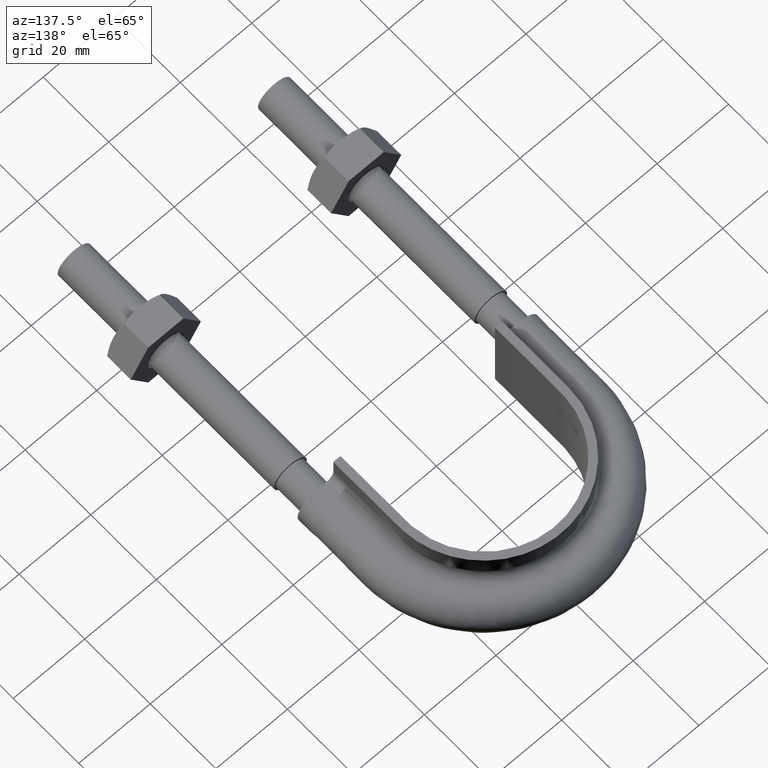
[diagram: clean part render]
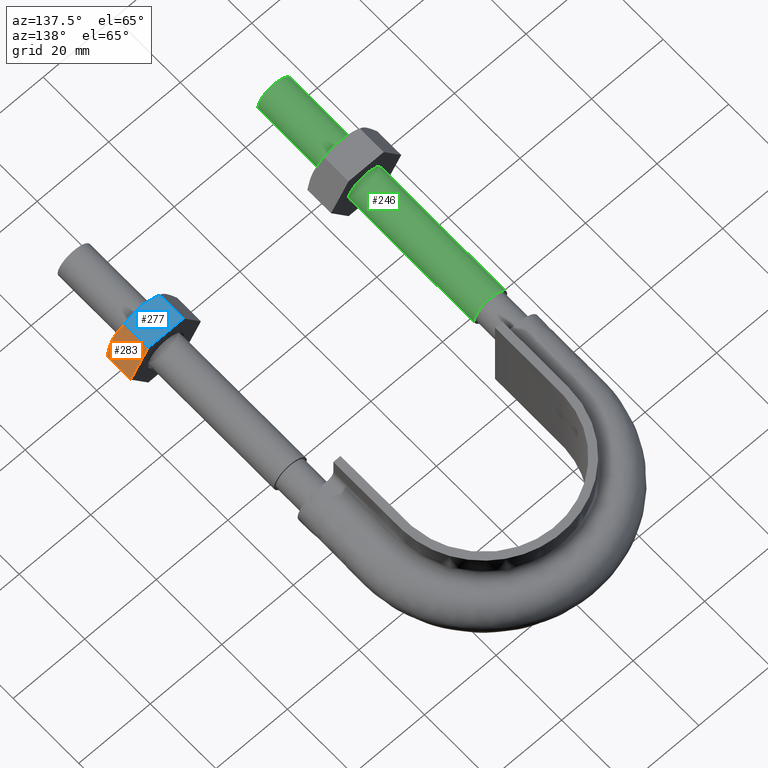
[diagram: same view with three faces highlighted in distinct colors, each labeled with its STEP entity id]
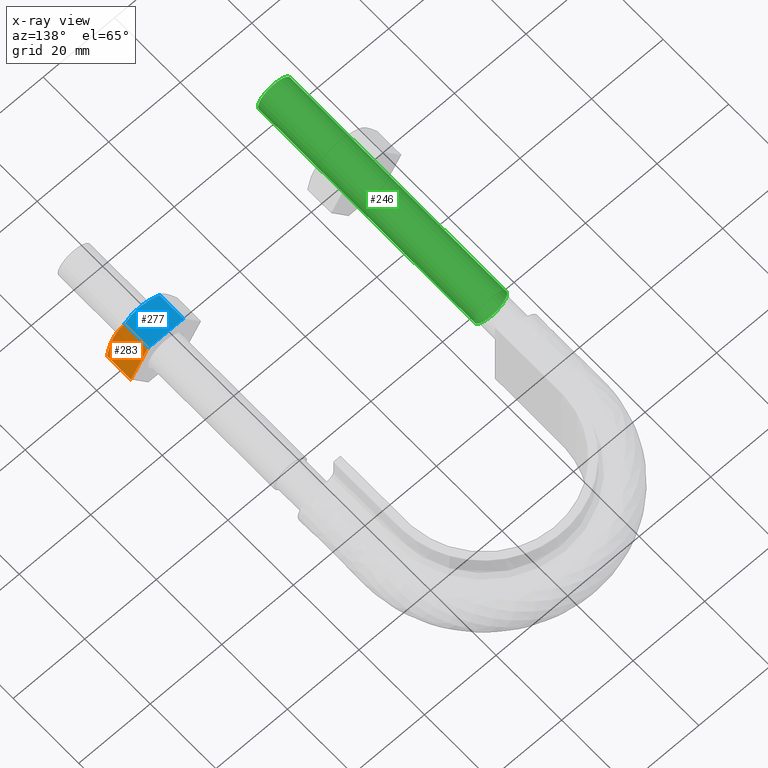
[diagram: x-ray of the same camera — body ghosted, the three highlighted faces saturated]
A machine part, auxiliary view with three faces highlighted in distinct colors.
The next image is the same camera in x-ray (body ghosted, the three faces saturated) — at least one of them is partly hidden behind the body in this view.
Their STEP definitions:

[orange] entity #283 — the highlighted planar face has unit normal (-0.866, 0, -0.5).
#283 = ADVANCED_FACE( '', ( #441 ), #442, .F. );
#441 = FACE_OUTER_BOUND( '', #1438, .T. );
#442 = PLANE( '', #1439 );
#1438 = EDGE_LOOP( '', ( #1905, #1906, #1907, #1908, #1909 ) );
#1439 = AXIS2_PLACEMENT_3D( '', #1910, #1911, #1912 );
#1905 = ORIENTED_EDGE( '', *, *, #2137, .F. );
#1906 = ORIENTED_EDGE( '', *, *, #2129, .F. );
#1907 = ORIENTED_EDGE( '', *, *, #2138, .F. );
#1908 = ORIENTED_EDGE( '', *, *, #2139, .F. );
#1909 = ORIENTED_EDGE( '', *, *, #2132, .F. );
#1910 = CARTESIAN_POINT( '', ( 32.9074772881116, 27.9999999999984, 8.49999999999788 ) );
#1911 = DIRECTION( '', ( -0.866025403784525, 2.42723201254774E-016, -0.499999999999850 ) );
#1912 = DIRECTION( '', ( -0.499999999999850, -2.69476886643776E-032, 0.866025403784525 ) );
#2129 = EDGE_CURVE( '', #2365, #2361, #2367, .T. );
#2132 = EDGE_CURVE( '', #2370, #2368, #2372, .T. );
#2137 = EDGE_CURVE( '', #2361, #2370, #2381, .T. );
#2138 = EDGE_CURVE( '', #2382, #2365, #2383, .F. );
#2139 = EDGE_CURVE( '', #2368, #2382, #2384, .T. );
#2361 = VERTEX_POINT( '', #2970 );
#2365 = VERTEX_POINT( '', #2979 );
#2367 = B_SPLINE_CURVE_WITH_KNOTS( '', 3, ( #2981, #2982, #2983, #2984, #2985, #2986 ), .UNSPECIFIED., .F., .F., ( 4, 2, 4 ), ( 3.21872519956634E-018, 0.00246745482903789, 0.00493490965807578 ), .UNSPECIFIED. );
#2368 = VERTEX_POINT( '', #2987 );
#2370 = VERTEX_POINT( '', #2989 );
#2372 = LINE( '', #2991, #2992 );
#2381 = B_SPLINE_CURVE_WITH_KNOTS( '', 3, ( #3003, #3004, #3005, #3006, #3007, #3008 ), .UNSPECIFIED., .F., .F., ( 4, 2, 4 ), ( 9.44429089712054E-017, 0.00246745482903755, 0.00493490965807501 ), .UNSPECIFIED. );
#2382 = VERTEX_POINT( '', #3009 );
#2383 = LINE( '', #3010, #3011 );
#2384 = LINE( '', #3012, #3013 );
#2970 = CARTESIAN_POINT( '', ( 35.3612159321676, 19.9999999999994, 4.24999999999817 ) );
#2979 = CARTESIAN_POINT( '', ( 37.7999656118192, 20.7505553499465, 0.0259616478954711 ) );
#2981 = CARTESIAN_POINT( '', ( 37.7999656118192, 20.7505553499465, 0.0259616478954667 ) );
#2982 = CARTESIAN_POINT( '', ( 37.4015017855062, 20.5215585493653, 0.716121240048119 ) );
#2983 = CARTESIAN_POINT( '', ( 36.9999375199989, 20.3328582843700, 1.41165095041122 ) );
#2984 = CARTESIAN_POINT( '', ( 36.1878690560099, 20.0716504305280, 2.81819478926504 ) );
#2985 = CARTESIAN_POINT( '', ( 35.7772989072622, 19.9999999999988, 3.52932314696745 ) );
#2986 = CARTESIAN_POINT( '', ( 35.3612159321667, 19.9999999999988, 4.24999999999765 ) );
#2987 = CARTESIAN_POINT( '', ( 32.9224662525141, 27.9999999999984, 8.47403835209988 ) );
#2989 = CARTESIAN_POINT( '', ( 32.9224662525146, 20.7505553499463, 8.47403835209911 ) );
#2991 = CARTESIAN_POINT( '', ( 32.9224662525141, 27.9999999999984, 8.47403835209988 ) );
#2992 = VECTOR( '', #3251, 1000.00000000000 );
#3003 = CARTESIAN_POINT( '', ( 35.3612159321667, 19.9999999999988, 4.24999999999765 ) );
#3004 = CARTESIAN_POINT( '', ( 34.9451329570712, 19.9999999999988, 4.97067685302772 ) );
#3005 = CARTESIAN_POINT( '', ( 34.5345628083236, 20.0716504305279, 5.68180521073000 ) );
#3006 = CARTESIAN_POINT( '', ( 33.7224943443347, 20.3328582843699, 7.08834904958358 ) );
#3007 = CARTESIAN_POINT( '', ( 33.3209300788279, 20.5215585493649, 7.78387875994579 ) );
#3008 = CARTESIAN_POINT( '', ( 32.9224662525150, 20.7505553499460, 8.47403835209833 ) );
#3009 = CARTESIAN_POINT( '', ( 37.7999656118192, 27.9999999999984, 0.0259616478954763 ) );
#3010 = CARTESIAN_POINT( '', ( 37.7999656118192, 27.9999999999984, 0.0259616478954757 ) );
#3011 = VECTOR( '', #3260, 1000.00000000000 );
#3012 = CARTESIAN_POINT( '', ( 32.9112159321675, 27.9999999999984, 8.49352447854162 ) );
#3013 = VECTOR( '', #3261, 1000.00000000000 );
#3251 = DIRECTION( '', ( 2.44921270764476E-016, 1.00000000000000, 6.12303176911193E-017 ) );
#3260 = DIRECTION( '', ( 2.44921270764476E-016, 1.00000000000000, 6.12303176911193E-017 ) );
#3261 = DIRECTION( '', ( 0.499999999999850, -6.94336247798948E-017, -0.866025403784525 ) );

[blue] entity #277 — the highlighted planar face has unit normal (-0, 0, -1).
#277 = ADVANCED_FACE( '', ( #428 ), #429, .F. );
#428 = FACE_OUTER_BOUND( '', #1425, .T. );
#429 = PLANE( '', #1426 );
#1425 = EDGE_LOOP( '', ( #1864, #1865, #1866, #1867, #1868 ) );
#1426 = AXIS2_PLACEMENT_3D( '', #1869, #1870, #1871 );
#1864 = ORIENTED_EDGE( '', *, *, #2118, .F. );
#1865 = ORIENTED_EDGE( '', *, *, #2119, .F. );
#1866 = ORIENTED_EDGE( '', *, *, #2120, .F. );
#1867 = ORIENTED_EDGE( '', *, *, #2121, .F. );
#1868 = ORIENTED_EDGE( '', *, *, #2115, .F. );
#1869 = CARTESIAN_POINT( '', ( 23.0925227118884, 27.9999999999984, 8.49999999999958 ) );
#1870 = DIRECTION( '', ( -5.70502706995067E-027, 6.12303176911189E-017, -1.00000000000000 ) );
#1871 = DIRECTION( '', ( -1.00000000000000, -4.39305984771510E-059, 5.70502706995067E-027 ) );
#2115 = EDGE_CURVE( '', #2341, #2343, #2344, .T. );
#2118 = EDGE_CURVE( '', #2346, #2341, #2348, .T. );
#2119 = EDGE_CURVE( '', #2349, #2346, #2350, .T. );
#2120 = EDGE_CURVE( '', #2351, #2349, #2352, .F. );
#2121 = EDGE_CURVE( '', #2343, #2351, #2353, .T. );
#2341 = VERTEX_POINT( '', #2935 );
#2343 = VERTEX_POINT( '', #2937 );
#2344 = LINE( '', #2938, #2939 );
#2346 = VERTEX_POINT( '', #2941 );
#2348 = B_SPLINE_CURVE_WITH_KNOTS( '', 3, ( #2943, #2944, #2945, #2946, #2947, #2948 ), .UNSPECIFIED., .F., .F., ( 4, 2, 4 ), ( 1.76907777093865E-017, 0.00246745482903631, 0.00493490965807261 ), .UNSPECIFIED. );
#2349 = VERTEX_POINT( '', #2949 );
#2350 = B_SPLINE_CURVE_WITH_KNOTS( '', 3, ( #2950, #2951, #2952, #2953, #2954, #2955 ), .UNSPECIFIED., .F., .F., ( 4, 2, 4 ), ( 2.59560083346989E-016, 0.00246745482903630, 0.00493490965807233 ), .UNSPECIFIED. );
#2351 = VERTEX_POINT( '', #2956 );
#2352 = LINE( '', #2957, #2958 );
#2353 = LINE( '', #2959, #2960 );
#2935 = CARTESIAN_POINT( '', ( 23.1225006406966, 20.7505553499464, 8.49999999999958 ) );
#2937 = CARTESIAN_POINT( '', ( 23.1225006406964, 27.9999999999984, 8.49999999999958 ) );
#2938 = CARTESIAN_POINT( '', ( 23.1225006406964, 27.9999999999984, 8.49999999999958 ) );
#2939 = VECTOR( '', #3222, 1000.00000000000 );
#2941 = CARTESIAN_POINT( '', ( 28.0000000000000, 19.9999999999999, 8.49999999999979 ) );
#2943 = CARTESIAN_POINT( '', ( 28.0000000000000, 19.9999999999998, 8.49999999999958 ) );
#2944 = CARTESIAN_POINT( '', ( 27.1678340498092, 19.9999999999998, 8.49999999999958 ) );
#2945 = CARTESIAN_POINT( '', ( 26.3466937523142, 20.0716504305288, 8.49999999999958 ) );
#2946 = CARTESIAN_POINT( '', ( 24.7225568243368, 20.3328582843705, 8.49999999999958 ) );
#2947 = CARTESIAN_POINT( '', ( 23.9194282933226, 20.5215585493655, 8.49999999999958 ) );
#2948 = CARTESIAN_POINT( '', ( 23.1225006406969, 20.7505553499464, 8.49999999999958 ) );
#2949 = CARTESIAN_POINT( '', ( 32.8774993593034, 20.7505553499464, 8.49999999999958 ) );
#2950 = CARTESIAN_POINT( '', ( 32.8774993593031, 20.7505553499464, 8.49999999999958 ) );
#2951 = CARTESIAN_POINT( '', ( 32.0805717066775, 20.5215585493655, 8.49999999999958 ) );
#2952 = CARTESIAN_POINT( '', ( 31.2774431756628, 20.3328582843704, 8.49999999999958 ) );
#2953 = CARTESIAN_POINT( '', ( 29.6533062476857, 20.0716504305288, 8.49999999999958 ) );
#2954 = CARTESIAN_POINT( '', ( 28.8321659501907, 19.9999999999998, 8.49999999999958 ) );
#2955 = CARTESIAN_POINT( '', ( 28.0000000000000, 19.9999999999998, 8.49999999999958 ) );
#2956 = CARTESIAN_POINT( '', ( 32.8774993593036, 27.9999999999984, 8.49999999999958 ) );
#2957 = CARTESIAN_POINT( '', ( 32.8774993593036, 27.9999999999984, 8.49999999999958 ) );
#2958 = VECTOR( '', #3229, 1000.00000000000 );
#2959 = CARTESIAN_POINT( '', ( 32.8999999999998, 27.9999999999984, 8.49999999999958 ) );
#2960 = VECTOR( '', #3230, 1000.00000000000 );
#3222 = DIRECTION( '', ( 2.44921270764476E-016, 1.00000000000000, 6.12303176911193E-017 ) );
#3229 = DIRECTION( '', ( 2.44921270764476E-016, 1.00000000000000, 6.12303176911193E-017 ) );
#3230 = DIRECTION( '', ( 1.00000000000000, -2.44921270764475E-016, -5.70504206655789E-027 ) );

[green] entity #246 — the highlighted cylindrical surface (bore or boss wall) has radius 4.6 mm, axis along (0, 1, 0).
#246 = ADVANCED_FACE( '', ( #359, #360 ), #361, .T. );
#359 = FACE_OUTER_BOUND( '', #1356, .T. );
#360 = FACE_OUTER_BOUND( '', #1357, .T. );
#361 = CYLINDRICAL_SURFACE( '', #1358, 4.60000000000000 );
#1356 = EDGE_LOOP( '', ( #1643 ) );
#1357 = EDGE_LOOP( '', ( #1644 ) );
#1358 = AXIS2_PLACEMENT_3D( '', #1645, #1646, #1647 );
#1643 = ORIENTED_EDGE( '', *, *, #2048, .T. );
#1644 = ORIENTED_EDGE( '', *, *, #2025, .F. );
#1645 = CARTESIAN_POINT( '', ( -28.0000000000000, 66.0000000000000, 4.02283187230651E-015 ) );
#1646 = DIRECTION( '', ( 2.44921270764475E-016, 1.00000000000000, 6.12303176911189E-017 ) );
#1647 = DIRECTION( '', ( 1.00000000000000, -2.44921270764475E-016, -7.49830360911069E-033 ) );
#2025 = EDGE_CURVE( '', #2195, #2195, #2196, .T. );
#2048 = EDGE_CURVE( '', #2227, #2227, #2228, .T. );
#2195 = VERTEX_POINT( '', #2646 );
#2196 = CIRCLE( '', #2647, 4.60000000000000 );
#2227 = VERTEX_POINT( '', #2720 );
#2228 = CIRCLE( '', #2721, 4.60000000000000 );
#2646 = CARTESIAN_POINT( '', ( -23.4000000000000, 5.73115773588873E-015, -1.83690953073355E-017 ) );
#2647 = AXIS2_PLACEMENT_3D( '', #3084, #3085, #3086 );
#2720 = CARTESIAN_POINT( '', ( -23.4000000000000, 66.0000000000000, 4.02283187230651E-015 ) );
#2721 = AXIS2_PLACEMENT_3D( '', #3111, #3112, #3113 );
#3084 = CARTESIAN_POINT( '', ( -28.0000000000000, 6.85779558140531E-015, -1.83690953073355E-017 ) );
#3085 = DIRECTION( '', ( -2.44921270764475E-016, -1.00000000000000, -6.12303176911189E-017 ) );
#3086 = DIRECTION( '', ( 1.00000000000000, -2.44921270764475E-016, -6.84411544865306E-033 ) );
#3111 = CARTESIAN_POINT( '', ( -28.0000000000000, 66.0000000000000, 4.02283187230651E-015 ) );
#3112 = DIRECTION( '', ( -2.44921270764475E-016, -1.00000000000000, -6.12303176911189E-017 ) );
#3113 = DIRECTION( '', ( 1.00000000000000, -2.44921270764475E-016, -6.84411544865306E-033 ) );